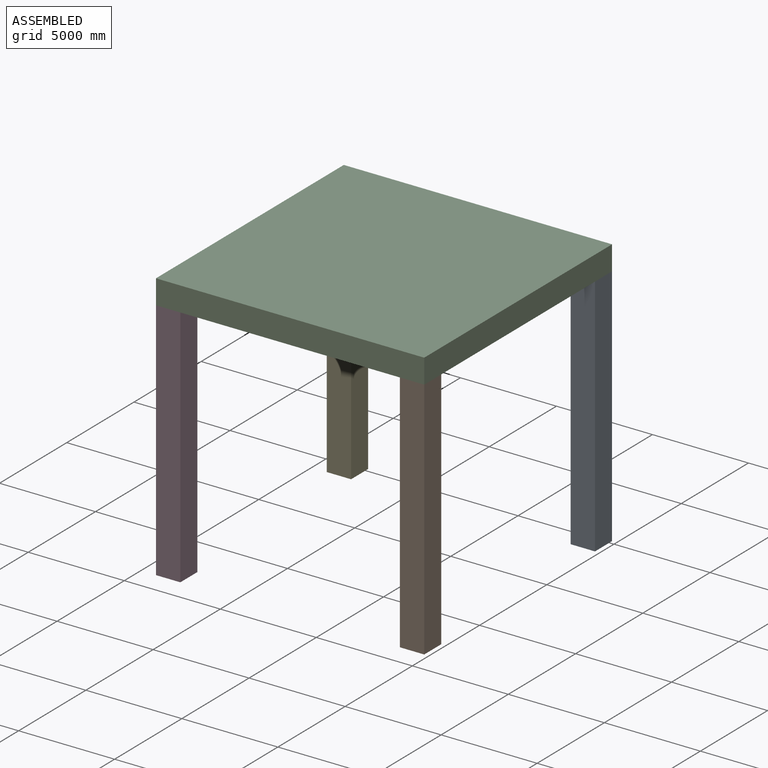
[diagram: assembled view]
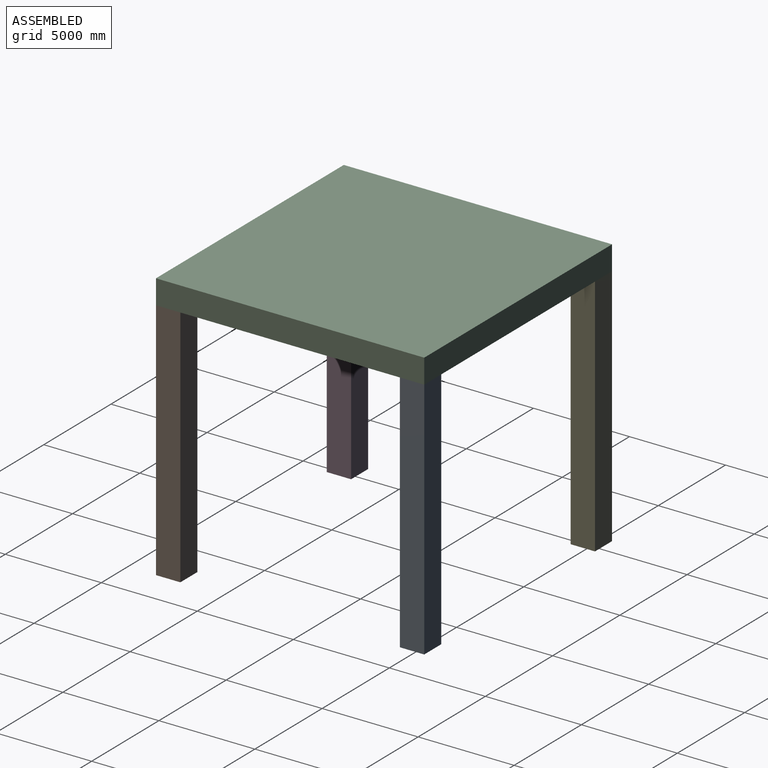
[diagram: assembled view, second angle]
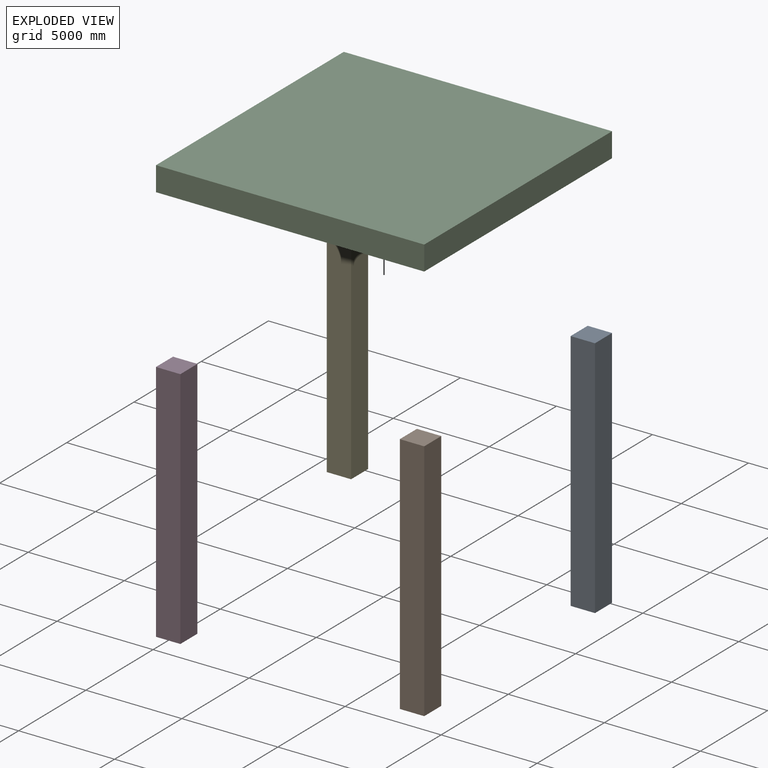
[diagram: exploded view]
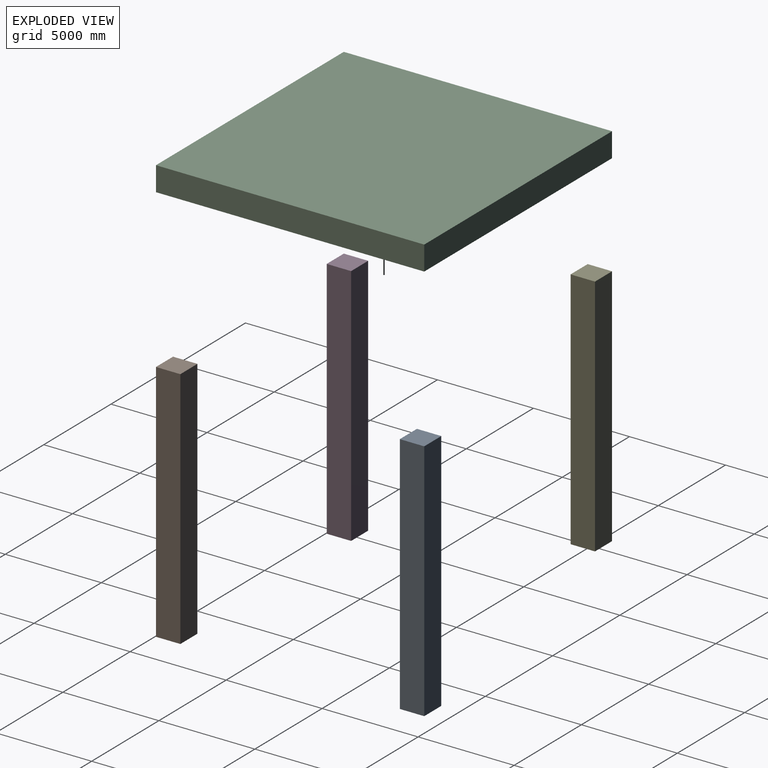
[diagram: exploded view, second angle]
ASSEMBLY  parts=5 mates=4
PART A: 6 faces, bbox 1270x1270x12700 mm
  f0: plane 12700x1270mm, normal (0,-1,0), area 16129000mm2, adj f1,f3,f4,f5
  f1: plane 12700x1270mm, normal (1,0,0), area 16129000mm2, adj f0,f2,f4,f5
  f2: plane 12700x1270mm, normal (0,1,0), area 16129000mm2, adj f1,f3,f4,f5
  f3: plane 12700x1270mm, normal (-1,0,0), area 16129000mm2, adj f0,f2,f4,f5
  f4: plane 1270x1270mm, normal (0,0,1), area 1612900mm2, adj f0,f1,f2,f3
  f5: plane 1270x1270mm, normal (0,0,-1), area 1612900mm2, adj f0,f1,f2,f3
PART B: same geometry as A
PART C: 6 faces, bbox 13970x13970x1270 mm
  f0: plane 13970x1270mm, normal (1,0,0), area 17741900mm2, adj f1,f3,f4,f5
  f1: plane 13970x1270mm, normal (0,1,0), area 17741900mm2, adj f0,f2,f4,f5
  f2: plane 13970x1270mm, normal (-1,0,0), area 17741900mm2, adj f1,f3,f4,f5
  f3: plane 13970x1270mm, normal (0,-1,0), area 17741900mm2, adj f0,f2,f4,f5
  f4: plane 13970x13970mm, normal (0,0,1), area 195160900mm2, adj f0,f1,f2,f3
  f5: plane 13970x13970mm, normal (0,0,-1), area 195160900mm2, adj f0,f1,f2,f3
PART D: same geometry as A
PART E: same geometry as A
PLACE A t=(8141.89,18827.4,-2649.49)mm
PLACE B t=(8141.89,6127.4,-2649.49)mm
PLACE C t=(1791.89,12477.4,10050.51)mm
PLACE D t=(-4558.11,6127.4,-2649.49)mm
PLACE E t=(-4558.11,18827.4,-2649.49)mm
MATE fastened B.f4 <-> C.f5  axis (0,0,1) through (8776.89,5492.4,10050.51)mm
MATE fastened D.f4 <-> C.f5  axis (0,0,1) through (-5193.11,5492.4,10050.51)mm
MATE fastened E.f4 <-> C.f5  axis (0,0,1) through (-5193.11,19462.4,10050.51)mm
MATE fastened A.f4 <-> C.f5  axis (0,0,1) through (8776.89,19462.4,10050.51)mm
